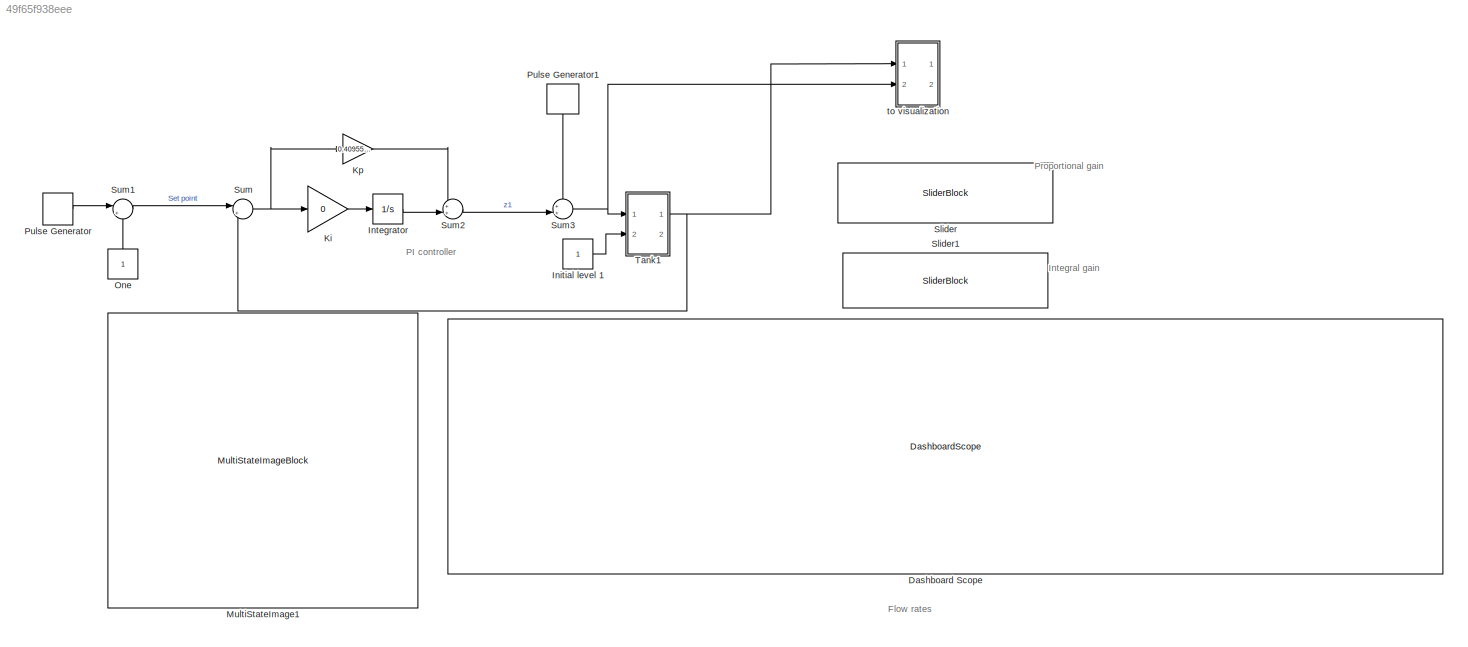
MODEL slx_49f65f938eee
KIND model
CONFIG AbsTol = auto
CONFIG EnableMultiTasking = off
CONFIG FixedStep = 0.1
CONFIG MaxStep = auto
CONFIG MinStep = auto
CONFIG RelTol = 1e-3
CONFIG SampleTimeConstraint = Unconstrained
CONFIG SolverName = FixedStepAuto
CONFIG StartTime = 0.0
CONFIG StopTime = inf
WORKSPACE source: MATLAB code (in-file)
WORKSPACE A1 = 1
WORKSPACE a1 = 0.1*0.1  (= 0.01)
WORKSPACE A2 = A1  (= 1)
WORKSPACE a2 = a1  (= 0.01)
WORKSPACE h10 = 1
WORKSPACE h20 = 1
BLOCK [DashboardScope] Dashboard Scope
  ScaleAtStop = off
  Ymax = 2.5
  Ymin = 0
BLOCK [Constant] Initial level 1
BLOCK [Integrator] Integrator
  Ports = [1, 1]
BLOCK [Gain] Ki
  Gain = 0
BLOCK [Gain] Kp
  Gain = 0.409556313993174
BLOCK [MultiStateImageBlock] MultiStateImage1
BLOCK [Constant] One
  NameLocation = right
  OutDataTypeStr = Inherit: Inherit via back propagation
BLOCK [DiscretePulseGenerator] Pulse Generator
  Amplitude = 0.5
  Period = 60
  Ports = [0, 1]
  PulseType = Time based
  PulseWidth = 50
BLOCK [DiscretePulseGenerator] Pulse Generator1
  Amplitude = 0.1
  NameLocation = left
  Period = 60
  PhaseDelay = 15
  Ports = [0, 1]
  PulseType = Time based
  PulseWidth = 25
BLOCK [SliderBlock] Slider
  ScaleMax = 2
BLOCK [SliderBlock] Slider1
  ScaleMax = 2
BLOCK [Sum] Sum
  Inputs = |+-
  Ports = [2, 1]
BLOCK [Sum] Sum1
  Inputs = |++
  Ports = [2, 1]
BLOCK [Sum] Sum2
  Inputs = ++|
  Ports = [2, 1]
BLOCK [Sum] Sum3
  Inputs = ++|
  Ports = [2, 1]
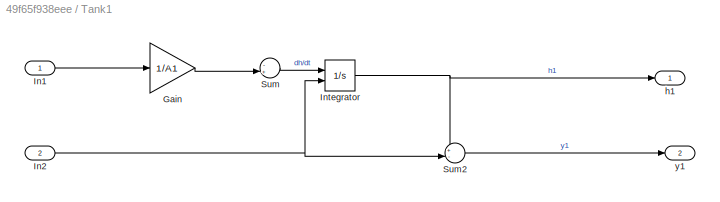
BLOCK [SubSystem] Tank1
  Ports = [2, 2]
  RequestExecContextInheritance = off
BLOCK [Gain] Tank1/Gain
  Gain = 1/A1
BLOCK [Inport] Tank1/In1
BLOCK [Inport] Tank1/In2
  Port = 2
BLOCK [Integrator] Tank1/Integrator
  InitialCondition = h10
  InitialConditionSource = external
  LimitOutput = on
  LowerSaturationLimit = 0
  Ports = [2, 1]
BLOCK [Sum] Tank1/Sum
  Inputs = -+|
  Ports = [2, 1]
BLOCK [Sum] Tank1/Sum2
  Inputs = +-|
  Ports = [2, 1]
BLOCK [Outport] Tank1/h1
  VectorParamsAs1DForOutWhenUnconnected = off
BLOCK [Outport] Tank1/y1
  Port = 2
  VectorParamsAs1DForOutWhenUnconnected = off
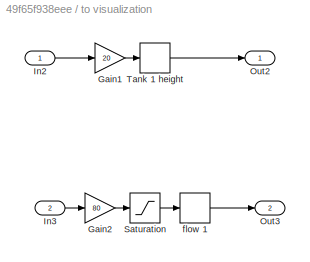
BLOCK [SubSystem] to visualization
  Ports = [2, 2]
  RequestExecContextInheritance = off
BLOCK [Gain] to visualization/Gain1
  Gain = 20
BLOCK [Gain] to visualization/Gain2
  Gain = 80
BLOCK [Inport] to visualization/In2
BLOCK [Inport] to visualization/In3
  Port = 2
BLOCK [Outport] to visualization/Out2
  VectorParamsAs1DForOutWhenUnconnected = off
BLOCK [Outport] to visualization/Out3
  Port = 2
  VectorParamsAs1DForOutWhenUnconnected = off
BLOCK [Saturate] to visualization/Saturation
  LowerLimit = 0
  UpperLimit = 10
BLOCK [Rounding] to visualization/Tank 1 height
BLOCK [Rounding] to visualization/flow 1
ANNOTATION (root): Integral gain
ANNOTATION (root): Proportional gain
ANNOTATION (root): Flow rates
ANNOTATION (root): PI controller
LINE Initial level 1:1 -> Tank1:2
LINE Integrator:1 -> Sum2:2
LINE Ki:1 -> Integrator:1
LINE Kp:1 -> Sum2:1
LINE One:1 -> Sum1:2
LINE Pulse Generator1:1 -> Sum3:1
LINE Pulse Generator:1 -> Sum1:1
LINE Sum1:1 -> Sum:1
LINE Sum2:1 -> Sum3:2
NET Sum3:1 -> Tank1:1, to visualization:2
NET Sum:1 -> Ki:1, Kp:1
LINE Tank1/Gain:1 -> Tank1/Sum:2
LINE Tank1/In1:1 -> Tank1/Gain:1
NET Tank1/In2:1 -> Tank1/Integrator:2, Tank1/Sum2:2
NET Tank1/Integrator:1 -> Tank1/Sum2:1, Tank1/h1:1
LINE Tank1/Sum2:1 -> Tank1/y1:1
LINE Tank1/Sum:1 -> Tank1/Integrator:1
NET Tank1:1 -> Sum:2, to visualization:1
LINE to visualization/Gain1:1 -> to visualization/Tank 1 height:1
LINE to visualization/Gain2:1 -> to visualization/Saturation:1
LINE to visualization/In2:1 -> to visualization/Gain1:1
LINE to visualization/In3:1 -> to visualization/Gain2:1
LINE to visualization/Saturation:1 -> to visualization/flow 1:1
LINE to visualization/Tank 1 height:1 -> to visualization/Out2:1
LINE to visualization/flow 1:1 -> to visualization/Out3:1
note: NET lines group one-source signal fan-out (src -> all destinations, sorted); 1:1 wires keep LINE
